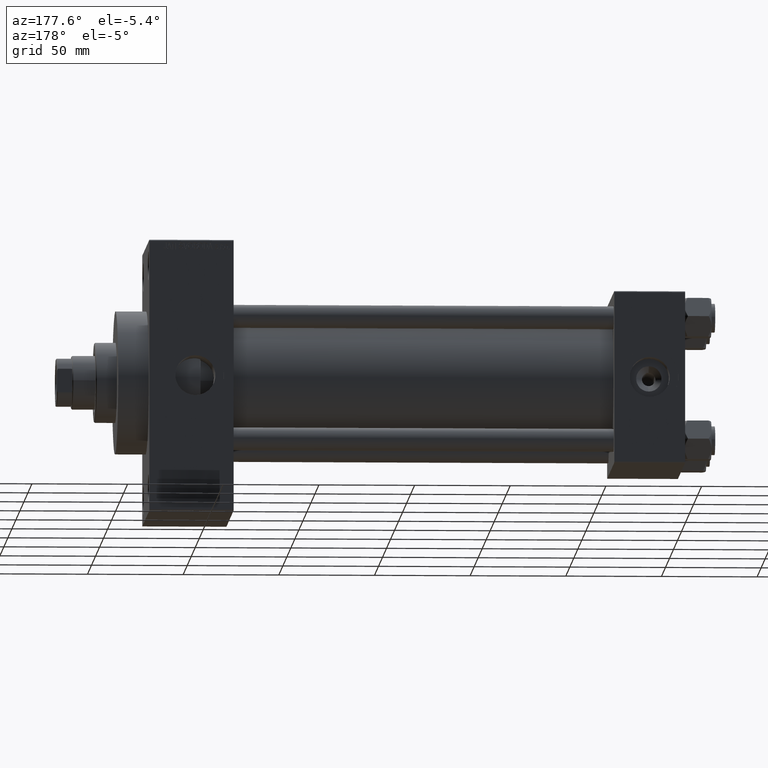
[diagram: clean part render]
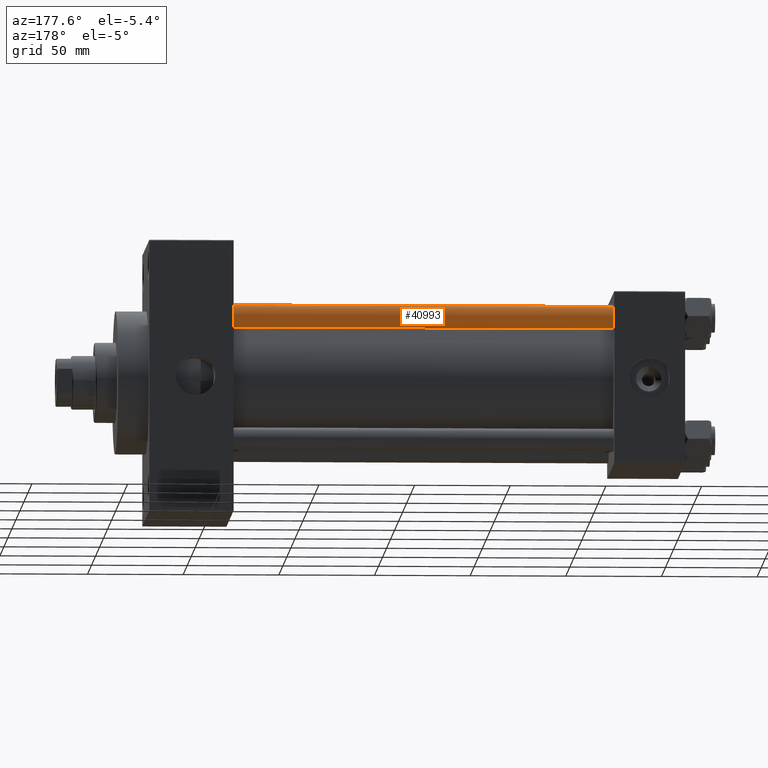
[diagram: same view with one face highlighted and labeled with its STEP entity id]
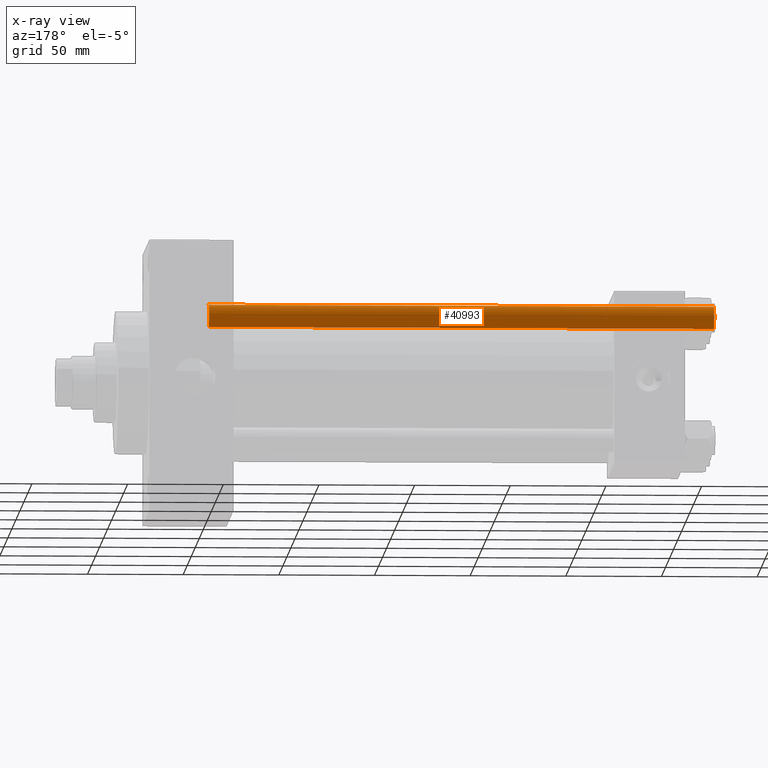
[diagram: x-ray of the same camera — body ghosted, the highlighted face saturated]
A machine part, auxiliary view. The second image highlights one B-rep face of the part: STEP entity #40993.
The next image is the same camera in x-ray: the body ghosted, the highlighted face saturated — about 0% of this face is hidden behind the body in this view.
In plain terms, the highlighted cylindrical surface (edge-blend (fillet) strip) has radius 6 mm, axis along (-1, -0, 0).
Its self-contained STEP definition (entity closure, byte-faithful):
#338 = ORIENTED_EDGE ( 'NONE', *, *, #22754, .F. ) ;
#4153 = CARTESIAN_POINT ( 'NONE',  ( -6.000000000000000888, 0.000000000000000000, 264.5000000000000000 ) ) ;
#4458 = ORIENTED_EDGE ( 'NONE', *, *, #41132, .T. ) ;
#4607 = VERTEX_POINT ( 'NONE', #36778 ) ;
#6693 = DIRECTION ( 'NONE',  ( 1.000000000000000000, 0.000000000000000000, 0.000000000000000000 ) ) ;
#9846 = VERTEX_POINT ( 'NONE', #21815 ) ;
#11971 = DIRECTION ( 'NONE',  ( 0.000000000000000000, 0.000000000000000000, -1.000000000000000000 ) ) ;
#12179 = VERTEX_POINT ( 'NONE', #14653 ) ;
#14205 = EDGE_CURVE ( 'NONE', #12179, #4607, #14343, .T. ) ;
#14343 = CIRCLE ( 'NONE', #31133, 6.000000000000000888 ) ;
#14513 = VECTOR ( 'NONE', #30326, 1000.000000000000000 ) ;
#14653 = CARTESIAN_POINT ( 'NONE',  ( 6.000000000000000888, 7.347880794884120722E-16, 0.5000000000000004441 ) ) ;
#15769 = CARTESIAN_POINT ( 'NONE',  ( -6.000000000000000888, 0.000000000000000000, 265.0000000000000000 ) ) ;
#17354 = VECTOR ( 'NONE', #30183, 1000.000000000000000 ) ;
#17662 = DIRECTION ( 'NONE',  ( -0.000000000000000000, -0.000000000000000000, 1.000000000000000000 ) ) ;
#18560 = LINE ( 'NONE', #29065, #17354 ) ;
#21815 = CARTESIAN_POINT ( 'NONE',  ( 6.000000000000000888, 7.347880794884120722E-16, 264.5000000000000000 ) ) ;
#22754 = EDGE_CURVE ( 'NONE', #24264, #4607, #34407, .T. ) ;
#22787 = AXIS2_PLACEMENT_3D ( 'NONE', #44465, #11971, #32803 ) ;
#24264 = VERTEX_POINT ( 'NONE', #4153 ) ;
#24452 = DIRECTION ( 'NONE',  ( -0.000000000000000000, -0.000000000000000000, -1.000000000000000000 ) ) ;
#24808 = CARTESIAN_POINT ( 'NONE',  ( 0.000000000000000000, 0.000000000000000000, 0.5000000000000004441 ) ) ;
#27803 = FACE_OUTER_BOUND ( 'NONE', #32138, .T. ) ;
#29065 = CARTESIAN_POINT ( 'NONE',  ( 6.000000000000000888, 7.347880794884120722E-16, 265.0000000000000000 ) ) ;
#30183 = DIRECTION ( 'NONE',  ( -0.000000000000000000, -0.000000000000000000, -1.000000000000000000 ) ) ;
#30326 = DIRECTION ( 'NONE',  ( -0.000000000000000000, -0.000000000000000000, -1.000000000000000000 ) ) ;
#30418 = CIRCLE ( 'NONE', #22787, 6.000000000000000888 ) ;
#31133 = AXIS2_PLACEMENT_3D ( 'NONE', #24808, #17662, #6693 ) ;
#32138 = EDGE_LOOP ( 'NONE', ( #4458, #33279, #40714, #338 ) ) ;
#32803 = DIRECTION ( 'NONE',  ( 1.000000000000000000, 0.000000000000000000, 0.000000000000000000 ) ) ;
#33279 = ORIENTED_EDGE ( 'NONE', *, *, #39263, .T. ) ;
#34407 = LINE ( 'NONE', #15769, #14513 ) ;
#35006 = AXIS2_PLACEMENT_3D ( 'NONE', #35688, #24452, #38804 ) ;
#35688 = CARTESIAN_POINT ( 'NONE',  ( 0.000000000000000000, 0.000000000000000000, 265.0000000000000000 ) ) ;
#36778 = CARTESIAN_POINT ( 'NONE',  ( -6.000000000000000888, 0.000000000000000000, 0.5000000000000004441 ) ) ;
#38804 = DIRECTION ( 'NONE',  ( -1.000000000000000000, 0.000000000000000000, 0.000000000000000000 ) ) ;
#39263 = EDGE_CURVE ( 'NONE', #9846, #12179, #18560, .T. ) ;
#40714 = ORIENTED_EDGE ( 'NONE', *, *, #14205, .T. ) ;
#40993 = ADVANCED_FACE ( 'NONE', ( #27803 ), #42387, .T. ) ;
#41132 = EDGE_CURVE ( 'NONE', #24264, #9846, #30418, .T. ) ;
#42387 = CYLINDRICAL_SURFACE ( 'NONE', #35006, 6.000000000000000888 ) ;
#44465 = CARTESIAN_POINT ( 'NONE',  ( 0.000000000000000000, 0.000000000000000000, 264.5000000000000000 ) ) ;